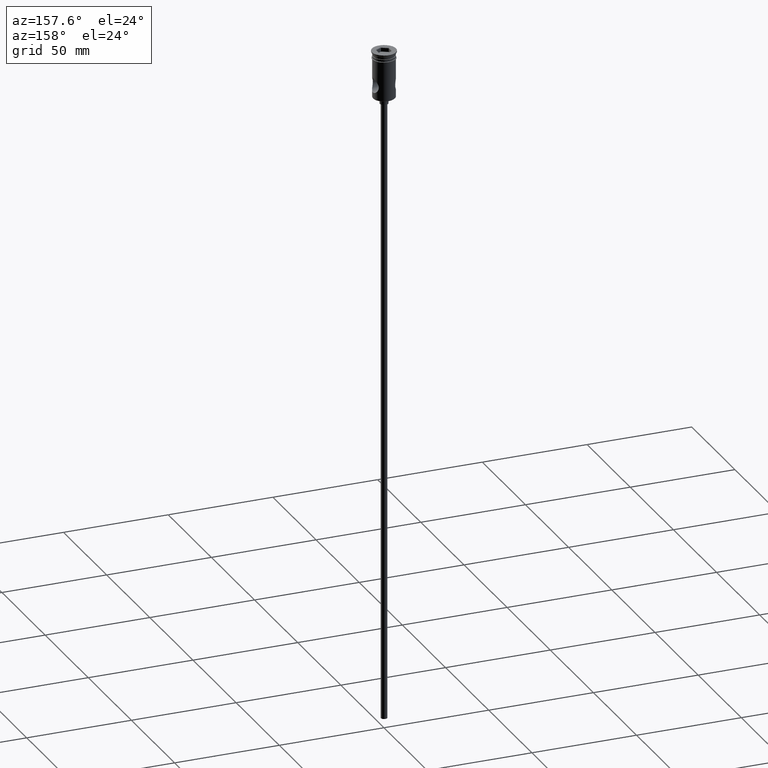
[diagram: clean part render]
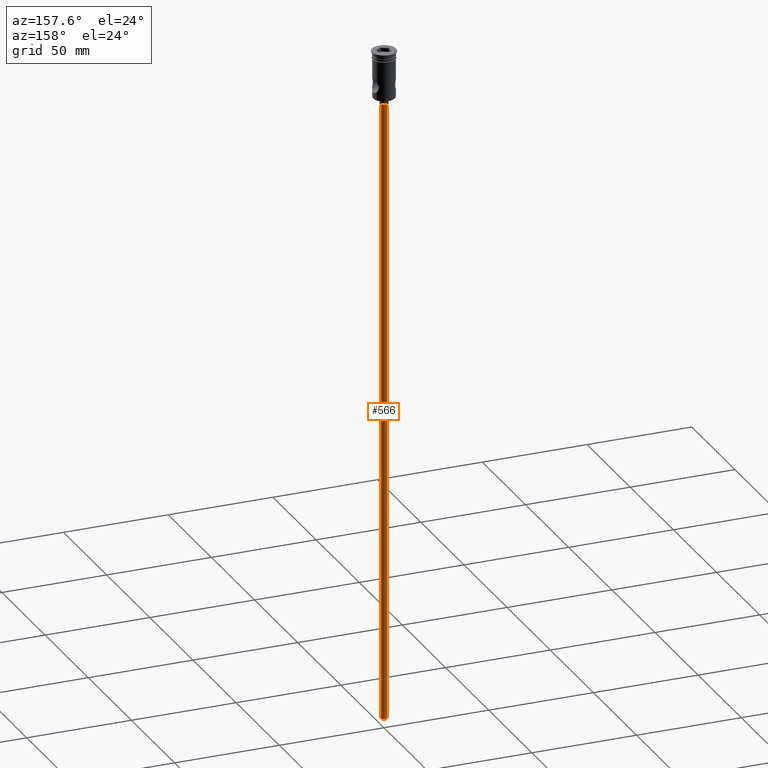
[diagram: same view with one face highlighted and labeled with its STEP entity id]
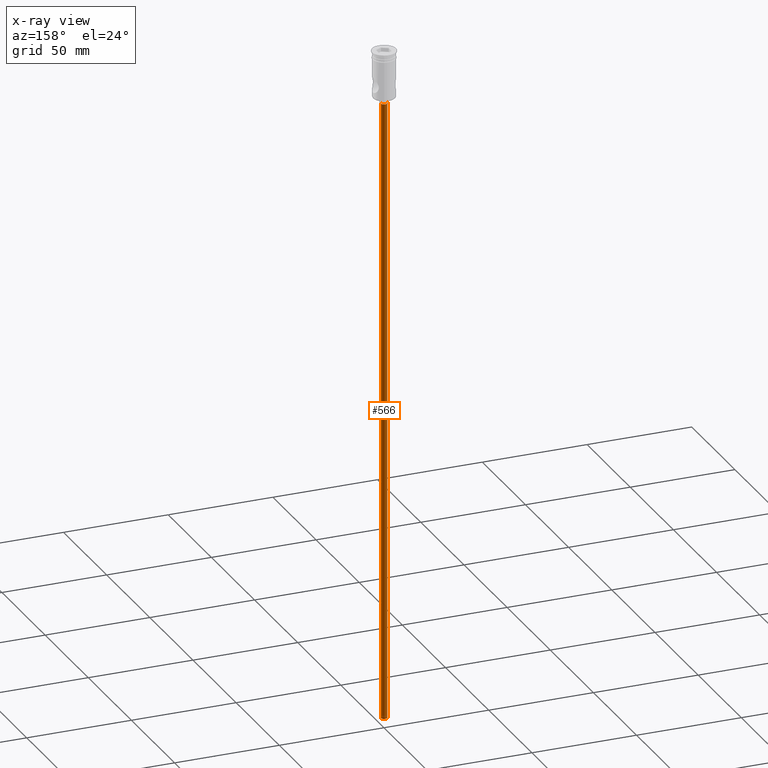
[diagram: x-ray of the same camera — body ghosted, the highlighted face saturated]
A machine part, auxiliary view. The second image highlights one B-rep face of the part: STEP entity #566.
The next image is the same camera in x-ray: the body ghosted, the highlighted face saturated — about 0% of this face is hidden behind the body in this view.
In plain terms, the highlighted cylindrical surface (edge-blend (fillet) strip) has radius 1.5 mm, axis along (-0, -0, 1).
Its self-contained STEP definition (entity closure, byte-faithful):
#9 = ORIENTED_EDGE ( 'NONE', *, *, #548, .T. ) ;
#18 = EDGE_CURVE ( 'NONE', #109, #155, #446, .T. ) ;
#39 = AXIS2_PLACEMENT_3D ( 'NONE', #728, #1052, #1071 ) ;
#109 = VERTEX_POINT ( 'NONE', #582 ) ;
#124 = VERTEX_POINT ( 'NONE', #1116 ) ;
#155 = VERTEX_POINT ( 'NONE', #245 ) ;
#245 = CARTESIAN_POINT ( 'NONE',  ( 1.500000000000000222, 0.000000000000000000, -25.50000000000000000 ) ) ;
#261 = ORIENTED_EDGE ( 'NONE', *, *, #1063, .F. ) ;
#285 = EDGE_LOOP ( 'NONE', ( #261, #9, #1138, #1412 ) ) ;
#387 = DIRECTION ( 'NONE',  ( -0.000000000000000000, -0.000000000000000000, 1.000000000000000000 ) ) ;
#446 = CIRCLE ( 'NONE', #629, 1.500000000000000222 ) ;
#476 = CARTESIAN_POINT ( 'NONE',  ( 0.000000000000000000, 0.000000000000000000, -322.5000000000000000 ) ) ;
#490 = CARTESIAN_POINT ( 'NONE',  ( 1.500000000000000222, 0.000000000000000000, -322.5000000000000000 ) ) ;
#532 = DIRECTION ( 'NONE',  ( 0.000000000000000000, 0.000000000000000000, -1.000000000000000000 ) ) ;
#548 = EDGE_CURVE ( 'NONE', #124, #109, #912, .T. ) ;
#566 = ADVANCED_FACE ( 'NONE', ( #610 ), #616, .T. ) ;
#582 = CARTESIAN_POINT ( 'NONE',  ( -1.500000000000000222, 1.836970198721030181E-16, -25.50000000000000000 ) ) ;
#610 = FACE_OUTER_BOUND ( 'NONE', #285, .T. ) ;
#616 = CYLINDRICAL_SURFACE ( 'NONE', #39, 1.500000000000000222 ) ;
#629 = AXIS2_PLACEMENT_3D ( 'NONE', #984, #532, #751 ) ;
#687 = CARTESIAN_POINT ( 'NONE',  ( -1.500000000000000222, 1.836970198721030181E-16, -322.5000000000000000 ) ) ;
#713 = CIRCLE ( 'NONE', #905, 1.500000000000000222 ) ;
#728 = CARTESIAN_POINT ( 'NONE',  ( 0.000000000000000000, 0.000000000000000000, -322.5000000000000000 ) ) ;
#751 = DIRECTION ( 'NONE',  ( -1.000000000000000000, 0.000000000000000000, 0.000000000000000000 ) ) ;
#813 = VECTOR ( 'NONE', #387, 1000.000000000000000 ) ;
#815 = EDGE_CURVE ( 'NONE', #827, #155, #863, .T. ) ;
#827 = VERTEX_POINT ( 'NONE', #1224 ) ;
#863 = LINE ( 'NONE', #490, #998 ) ;
#905 = AXIS2_PLACEMENT_3D ( 'NONE', #476, #1358, #1370 ) ;
#912 = LINE ( 'NONE', #687, #813 ) ;
#984 = CARTESIAN_POINT ( 'NONE',  ( 0.000000000000000000, 0.000000000000000000, -25.50000000000000000 ) ) ;
#998 = VECTOR ( 'NONE', #1247, 1000.000000000000000 ) ;
#1052 = DIRECTION ( 'NONE',  ( -0.000000000000000000, -0.000000000000000000, 1.000000000000000000 ) ) ;
#1063 = EDGE_CURVE ( 'NONE', #124, #827, #713, .T. ) ;
#1071 = DIRECTION ( 'NONE',  ( 1.000000000000000000, 0.000000000000000000, 0.000000000000000000 ) ) ;
#1116 = CARTESIAN_POINT ( 'NONE',  ( -1.500000000000000222, 1.836970198721030181E-16, -322.5000000000000000 ) ) ;
#1138 = ORIENTED_EDGE ( 'NONE', *, *, #18, .T. ) ;
#1224 = CARTESIAN_POINT ( 'NONE',  ( 1.500000000000000222, 0.000000000000000000, -322.5000000000000000 ) ) ;
#1247 = DIRECTION ( 'NONE',  ( -0.000000000000000000, -0.000000000000000000, 1.000000000000000000 ) ) ;
#1358 = DIRECTION ( 'NONE',  ( 0.000000000000000000, 0.000000000000000000, -1.000000000000000000 ) ) ;
#1370 = DIRECTION ( 'NONE',  ( -1.000000000000000000, 0.000000000000000000, 0.000000000000000000 ) ) ;
#1412 = ORIENTED_EDGE ( 'NONE', *, *, #815, .F. ) ;